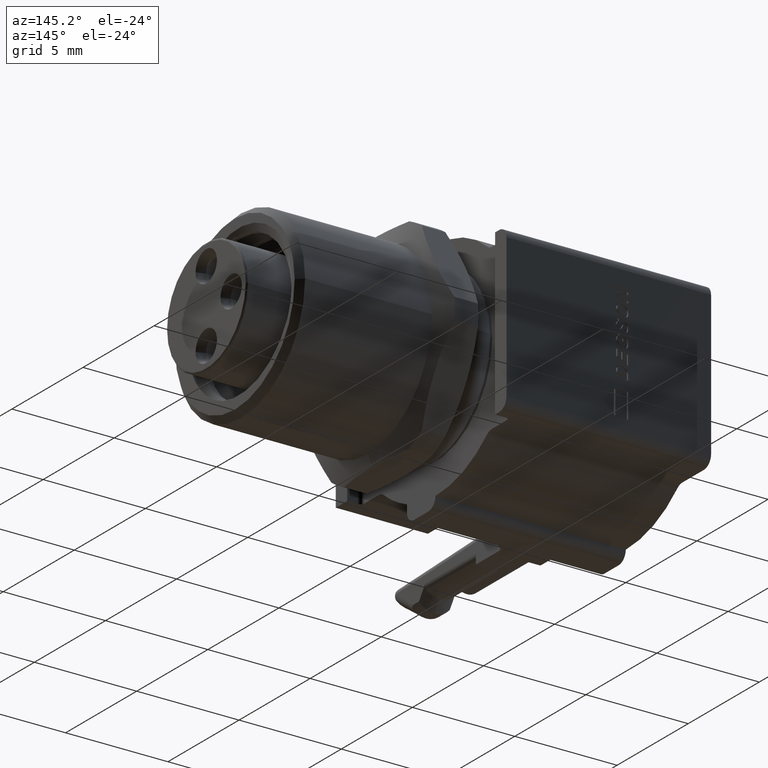
[diagram: clean part render]
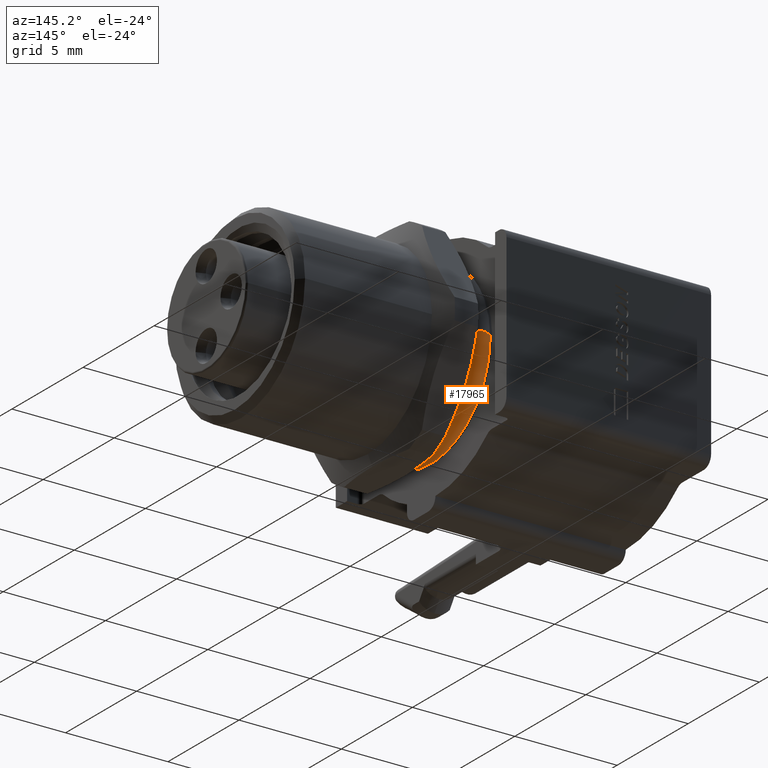
[diagram: same view with one face highlighted and labeled with its STEP entity id]
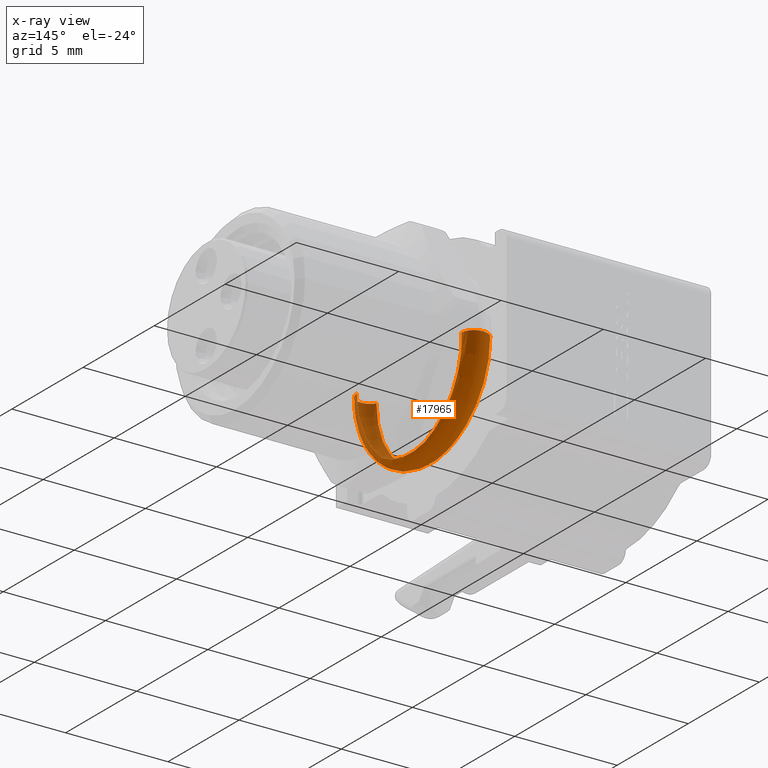
[diagram: x-ray of the same camera — body ghosted, the highlighted face saturated]
A machine part, auxiliary view. The second image highlights one B-rep face of the part: STEP entity #17965.
The next image is the same camera in x-ray: the body ghosted, the highlighted face saturated — about 23% of this face is hidden behind the body in this view.
In plain terms, the highlighted toroidal blend (fillet) surface has major radius 3.65 mm and minor (blend) radius 0.65 mm.
Its self-contained STEP definition (entity closure, byte-faithful):
#1676=CARTESIAN_POINT('',(2.081717976334E-2,-7.802122453273E-2,
-1.343358029973E-1));
#1677=CARTESIAN_POINT('',(2.087349547432E-2,-7.812207283189E-2,
-1.341498405507E-1));
#1678=CARTESIAN_POINT('',(2.097920968939E-2,-7.835605799301E-2,
-1.337696534222E-1));
#1679=CARTESIAN_POINT('',(2.112627777667E-2,-7.879765769384E-2,
-1.331580233056E-1));
#1680=CARTESIAN_POINT('',(2.125848711904E-2,-7.929736873142E-2,
-1.325331191967E-1));
#1681=CARTESIAN_POINT('',(2.137894752847E-2,-7.984218724729E-2,
-1.318965235215E-1));
#1682=CARTESIAN_POINT('',(2.148720470730E-2,-8.040966167669E-2,
-1.312643502656E-1));
#1683=CARTESIAN_POINT('',(2.158618269245E-2,-8.099595848675E-2,
-1.306328666746E-1));
#1684=CARTESIAN_POINT('',(2.167930261147E-2,-8.160993582009E-2,
-1.299879591016E-1));
#1685=CARTESIAN_POINT('',(2.176860855953E-2,-8.225890292085E-2,
-1.293191529946E-1));
#1686=CARTESIAN_POINT('',(2.185565324960E-2,-8.295131302342E-2,
-1.286157854094E-1));
#1687=CARTESIAN_POINT('',(2.194154281689E-2,-8.369584194876E-2,
-1.278674981870E-1));
#1688=CARTESIAN_POINT('',(2.202707188882E-2,-8.450137216311E-2,
-1.270638891491E-1));
#1689=CARTESIAN_POINT('',(2.211278068352E-2,-8.537679180737E-2,
-1.261944445349E-1));
#1690=CARTESIAN_POINT('',(2.219900159752E-2,-8.633085172020E-2,
-1.252484401556E-1));
#1691=CARTESIAN_POINT('',(2.228588922937E-2,-8.737198178695E-2,
-1.242148968847E-1));
#1692=CARTESIAN_POINT('',(2.237344242104E-2,-8.850806741317E-2,
-1.230825782838E-1));
#1693=CARTESIAN_POINT('',(2.246152126399E-2,-8.974617905064E-2,
-1.218400368964E-1));
#1694=CARTESIAN_POINT('',(2.254986142113E-2,-9.109224855600E-2,
-1.204757232230E-1));
#1695=CARTESIAN_POINT('',(2.263809034368E-2,-9.255074756866E-2,
-1.189781096293E-1));
#1696=CARTESIAN_POINT('',(2.272579946099E-2,-9.412530158717E-2,
-1.173348947354E-1));
#1697=CARTESIAN_POINT('',(2.281261767810E-2,-9.582017442496E-2,
-1.155311159716E-1));
#1698=CARTESIAN_POINT('',(2.289786097483E-2,-9.763273358013E-2,
-1.135570179291E-1));
#1699=CARTESIAN_POINT('',(2.298095622823E-2,-9.956061112978E-2,
-1.114005152865E-1));
#1700=CARTESIAN_POINT('',(2.306131716265E-2,-1.015993069100E-1,
-1.090496294298E-1));
#1701=CARTESIAN_POINT('',(2.313841532670E-2,-1.037439577441E-1,
-1.064902160246E-1));
#1702=CARTESIAN_POINT('',(2.321159910719E-2,-1.059834950745E-1,
-1.037131727024E-1));
#1703=CARTESIAN_POINT('',(2.328087804174E-2,-1.083257484378E-1,
-1.006826564776E-1));
#1704=CARTESIAN_POINT('',(2.334652800101E-2,-1.107958415259E-1,
-9.733070018775E-2));
#1705=CARTESIAN_POINT('',(2.340816514977E-2,-1.134056553165E-1,
-9.359227151141E-2));
#1706=CARTESIAN_POINT('',(2.346502437256E-2,-1.161590293393E-1,
-8.939639926832E-2));
#1707=CARTESIAN_POINT('',(2.351592694425E-2,-1.190470883684E-1,
-8.466963396906E-2));
#1708=CARTESIAN_POINT('',(2.355934839548E-2,-1.220477707552E-1,
-7.933263546126E-2));
#1709=CARTESIAN_POINT('',(2.359338133992E-2,-1.251150144011E-1,
-7.331700912520E-2));
#1710=CARTESIAN_POINT('',(2.361617523291E-2,-1.282152325800E-1,
-6.648871118798E-2));
#1711=CARTESIAN_POINT('',(2.362204724410E-2,-1.302759328879E-1,
-6.124496940483E-2));
#1712=CARTESIAN_POINT('',(2.362204724410E-2,-1.312732441332E-1,
-5.845726365970E-2));
#3474=CARTESIAN_POINT('',(2.353408688890E-2,1.458207333723E-1,0.E0));
#3475=CARTESIAN_POINT('',(2.351129545228E-2,1.460949104931E-1,
-4.214264080548E-3));
#3476=CARTESIAN_POINT('',(2.345790516296E-2,1.462656768334E-1,
-1.270105331666E-2));
#3477=CARTESIAN_POINT('',(2.335676715682E-2,1.453636359268E-1,
-2.553223244208E-2));
#3478=CARTESIAN_POINT('',(2.323759403497E-2,1.433081711184E-1,
-3.826165768924E-2));
#3479=CARTESIAN_POINT('',(2.310155936527E-2,1.400961128240E-1,
-5.085646665079E-2));
#3480=CARTESIAN_POINT('',(2.295073768295E-2,1.357562351592E-1,
-6.315622558002E-2));
#3481=CARTESIAN_POINT('',(2.278541875344E-2,1.302843018556E-1,
-7.513236864188E-2));
#3482=CARTESIAN_POINT('',(2.260711300659E-2,1.237225890780E-1,
-8.663556650918E-2));
#3483=CARTESIAN_POINT('',(2.241776536714E-2,1.161574634537E-1,
-9.750989080409E-2));
#3484=CARTESIAN_POINT('',(2.221810339137E-2,1.076471991462E-1,
-1.076831912996E-1));
#3485=CARTESIAN_POINT('',(2.200752307599E-2,9.819805792848E-2,
-1.171335076544E-1));
#3486=CARTESIAN_POINT('',(2.178611554686E-2,8.785004347964E-2,
-1.257823399582E-1));
#3487=CARTESIAN_POINT('',(2.155546073855E-2,7.672672075554E-2,
-1.335020393878E-1));
#3488=CARTESIAN_POINT('',(2.131695132672E-2,6.495894123726E-2,
-1.401991749290E-1));
#3489=CARTESIAN_POINT('',(2.107193709244E-2,5.268657950957E-2,
-1.458114450610E-1));
#3490=CARTESIAN_POINT('',(2.090292203356E-2,4.415267219237E-2,
-1.488367165855E-1));
#3491=CARTESIAN_POINT('',(2.081717976334E-2,3.982036532481E-2,
-1.501591087811E-1));
#3841=CARTESIAN_POINT('',(-1.968503937006E-3,-1.437007874016E-1,0.E0));
#3842=DIRECTION('',(0.E0,0.E0,-1.E0));
#3843=DIRECTION('',(1.E0,0.E0,0.E0));
#3844=AXIS2_PLACEMENT_3D('',#3841,#3842,#3843);
#3846=CARTESIAN_POINT('',(2.362204724410E-2,0.E0,0.E0));
#3847=DIRECTION('',(-1.E0,0.E0,0.E0));
#3848=DIRECTION('',(0.E0,-9.135179180776E-1,-4.067984923168E-1));
#3849=AXIS2_PLACEMENT_3D('',#3846,#3847,#3848);
#3851=CARTESIAN_POINT('',(-1.968503937006E-3,1.437007874016E-1,0.E0));
#3852=DIRECTION('',(0.E0,0.E0,1.E0));
#3853=DIRECTION('',(9.965627799663E-1,8.284096562650E-2,0.E0));
#3854=AXIS2_PLACEMENT_3D('',#3851,#3852,#3853);
#3856=CARTESIAN_POINT('',(-2.353238415375E-2,0.E0,0.E0));
#3857=DIRECTION('',(1.E0,0.E0,0.E0));
#3858=DIRECTION('',(0.E0,-1.E0,0.E0));
#3859=AXIS2_PLACEMENT_3D('',#3856,#3857,#3858);
#10921=CARTESIAN_POINT('',(2.081717976334E-2,0.E0,0.E0));
#10922=DIRECTION('',(-1.E0,0.E0,0.E0));
#10923=DIRECTION('',(0.E0,2.563278586815E-1,-9.665898969386E-1));
#10924=AXIS2_PLACEMENT_3D('',#10921,#10922,#10923);
#13693=CARTESIAN_POINT('',(-2.353238415374E-2,1.574803149606E-1,0.E0));
#13694=CARTESIAN_POINT('',(-2.353238415374E-2,-1.574803149606E-1,0.E0));
#13695=VERTEX_POINT('',#13693);
#13696=VERTEX_POINT('',#13694);
#13697=VERTEX_POINT('',#3474);
#13698=VERTEX_POINT('',#3491);
#13699=CARTESIAN_POINT('',(2.081717976334E-2,-7.802122453273E-2,
-1.343358029973E-1));
#13700=VERTEX_POINT('',#13699);
#13701=VERTEX_POINT('',#1712);
#13703=CARTESIAN_POINT('',(2.362204724410E-2,-1.437007874016E-1,0.E0));
#13704=VERTEX_POINT('',#13703);
#17949=CARTESIAN_POINT('',(-1.968503937006E-3,0.E0,0.E0));
#17950=DIRECTION('',(1.E0,0.E0,0.E0));
#17951=DIRECTION('',(0.E0,-1.E0,0.E0));
#17952=AXIS2_PLACEMENT_3D('',#17949,#17950,#17951);
#17953=TOROIDAL_SURFACE('',#17952,1.437007874016E-1,2.559055118110E-2);
#17955=ORIENTED_EDGE('',*,*,#17954,.F.);
#17956=ORIENTED_EDGE('',*,*,#17938,.F.);
#17957=ORIENTED_EDGE('',*,*,#17936,.F.);
#17958=ORIENTED_EDGE('',*,*,#16482,.F.);
#17960=ORIENTED_EDGE('',*,*,#17959,.F.);
#17961=ORIENTED_EDGE('',*,*,#17859,.F.);
#17962=ORIENTED_EDGE('',*,*,#17942,.T.);
#17963=EDGE_LOOP('',(#17955,#17956,#17957,#17958,#17960,#17961,#17962));
#17964=FACE_OUTER_BOUND('',#17963,.F.);
#17965=ADVANCED_FACE('',(#17964),#17953,.T.);
#1713=B_SPLINE_CURVE_WITH_KNOTS('',3,(#1676,#1677,#1678,#1679,#1680,#1681,#1682,
#1683,#1684,#1685,#1686,#1687,#1688,#1689,#1690,#1691,#1692,#1693,#1694,#1695,
#1696,#1697,#1698,#1699,#1700,#1701,#1702,#1703,#1704,#1705,#1706,#1707,#1708,
#1709,#1710,#1711,#1712),.UNSPECIFIED.,.F.,.F.,(4,1,1,1,1,1,1,1,1,1,1,1,1,1,1,1,
1,1,1,1,1,1,1,1,1,1,1,1,1,1,1,1,1,1,4),(0.E0,2.941176470588E-2,
5.882352941176E-2,8.823529411765E-2,1.176470588235E-1,1.470588235294E-1,
1.764705882353E-1,2.058823529412E-1,2.352941176471E-1,2.647058823529E-1,
2.941176470588E-1,3.235294117647E-1,3.529411764706E-1,3.823529411765E-1,
4.117647058824E-1,4.411764705882E-1,4.705882352941E-1,5.E-1,5.294117647059E-1,
5.588235294118E-1,5.882352941176E-1,6.176470588235E-1,6.470588235294E-1,
6.764705882353E-1,7.058823529412E-1,7.352941176471E-1,7.647058823529E-1,
7.941176470588E-1,8.235294117647E-1,8.529411764706E-1,8.823529411765E-1,
9.117647058824E-1,9.411764705882E-1,9.705882352941E-1,1.E0),.UNSPECIFIED.);
#3492=B_SPLINE_CURVE_WITH_KNOTS('',3,(#3474,#3475,#3476,#3477,#3478,#3479,#3480,
#3481,#3482,#3483,#3484,#3485,#3486,#3487,#3488,#3489,#3490,#3491),
.UNSPECIFIED.,.F.,.F.,(4,1,1,1,1,1,1,1,1,1,1,1,1,1,1,4),(0.E0,6.666666666667E-2,
1.333333333333E-1,2.E-1,2.666666666667E-1,3.333333333333E-1,4.E-1,
4.666666666667E-1,5.333333333333E-1,6.E-1,6.666666666667E-1,7.333333333333E-1,
8.E-1,8.666666666667E-1,9.333333333333E-1,1.E0),.UNSPECIFIED.);
#3845=CIRCLE('',#3844,2.559055118110E-2);
#3850=CIRCLE('',#3849,1.437007874016E-1);
#3855=CIRCLE('',#3854,2.559055118110E-2);
#3860=CIRCLE('',#3859,1.574803149606E-1);
#10925=CIRCLE('',#10924,1.553493464567E-1);
#16482=EDGE_CURVE('',#13700,#13701,#1713,.T.);
#17859=EDGE_CURVE('',#13697,#13698,#3492,.T.);
#17936=EDGE_CURVE('',#13701,#13704,#3850,.T.);
#17938=EDGE_CURVE('',#13704,#13696,#3845,.T.);
#17942=EDGE_CURVE('',#13697,#13695,#3855,.T.);
#17954=EDGE_CURVE('',#13696,#13695,#3860,.T.);
#17959=EDGE_CURVE('',#13698,#13700,#10925,.T.);